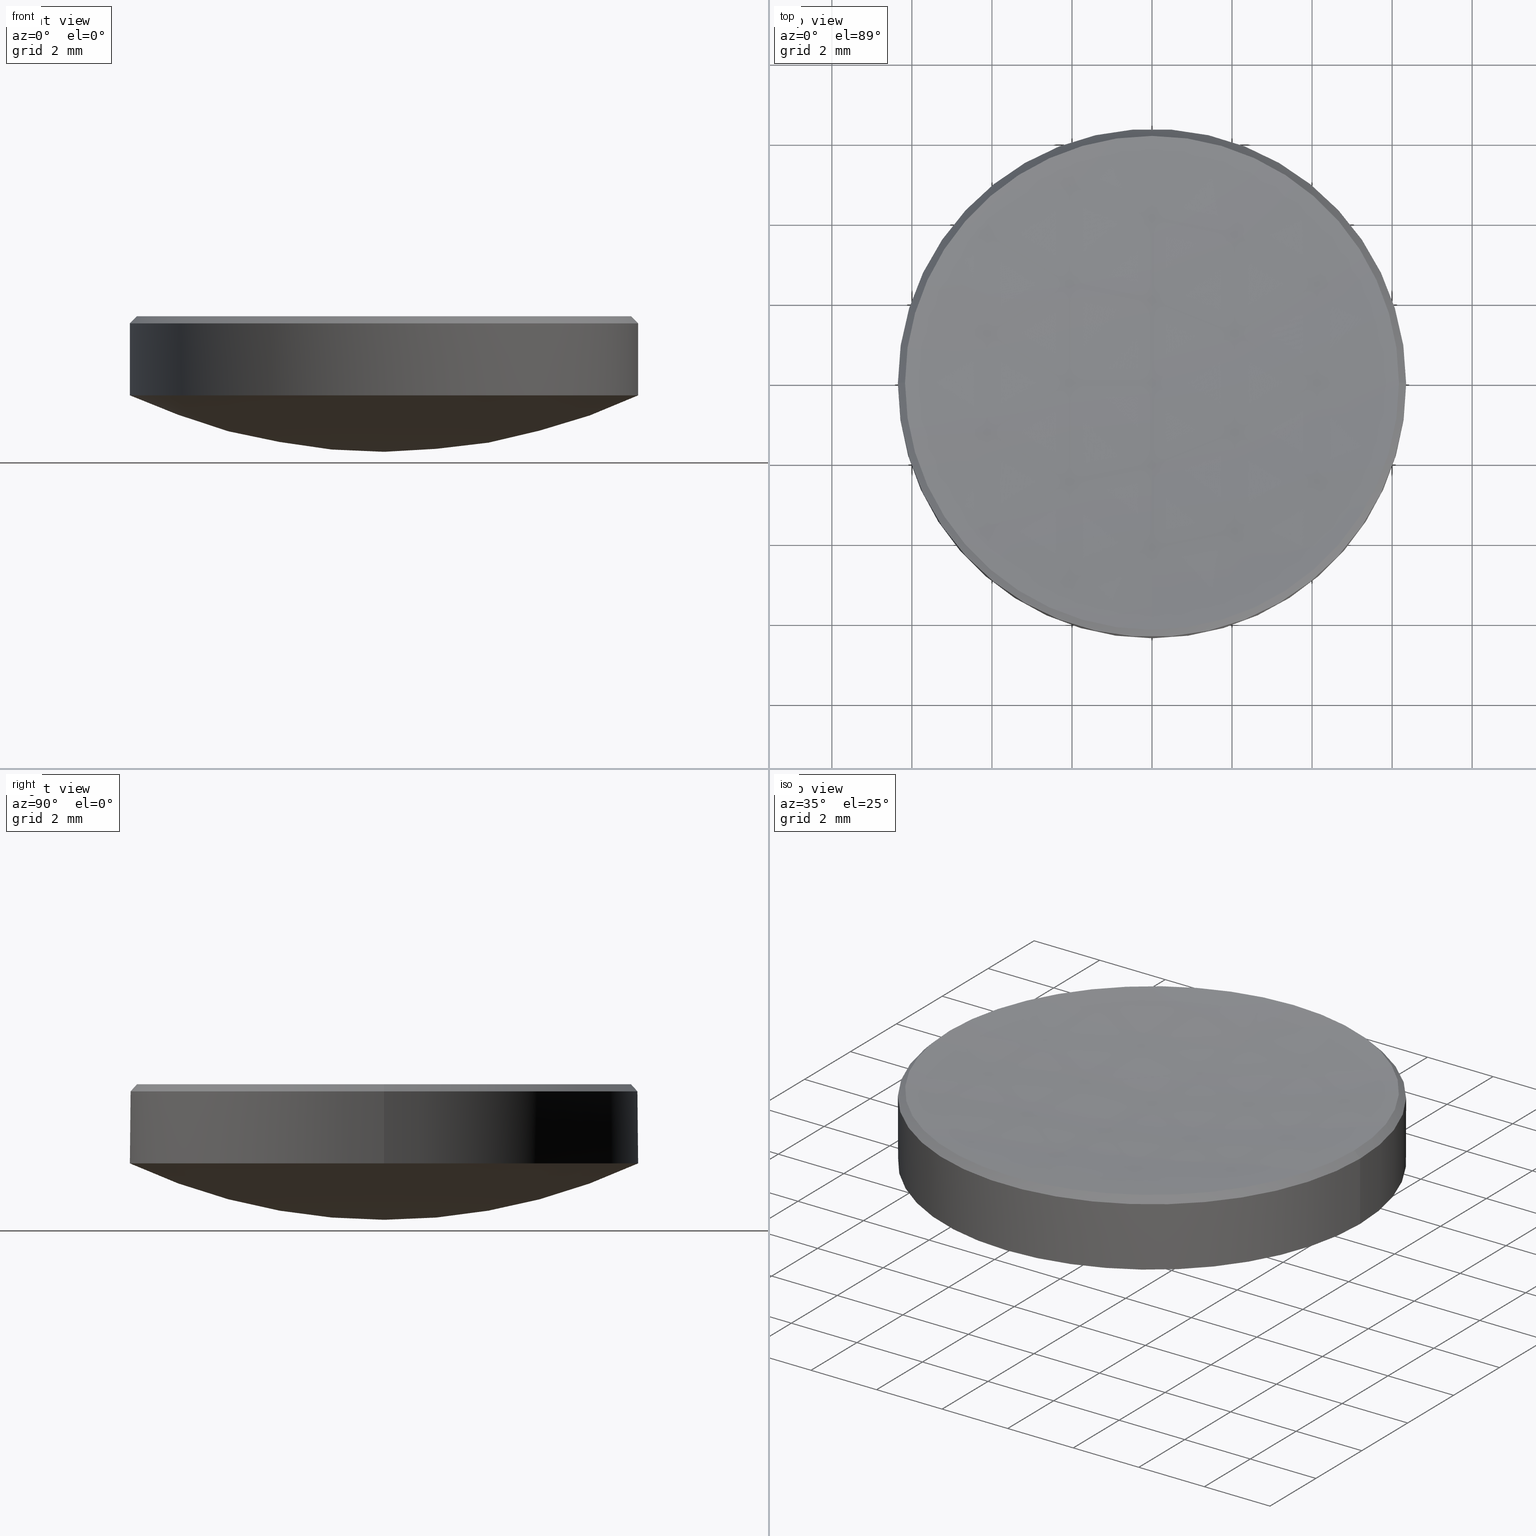
[diagram: canonical four-view strip — front | top / right | iso, engineering-drawing reading convention]
A machine part, canonical four-view strip (front | top / right | iso — engineering-drawing reading convention). The complete STEP part file that produces these views, byte-faithful:
ISO-10303-21;
HEADER;
FILE_DESCRIPTION (( 'STEP AP214' ),
    '1' );
FILE_NAME ('GLM5-012B-050.STEP',
    '2024-08-09T03:04:28',
    ( 'Windows User' ),
    ( 'P R C' ),
    'SwSTEP 2.0',
    'SolidWorks 2022',
    '' );
FILE_SCHEMA (( 'AUTOMOTIVE_DESIGN' ));
ENDSEC;

DATA;
#1 = ORIENTED_EDGE ( 'NONE', *, *, #2, .T. ) ;
#2 = EDGE_CURVE ( 'NONE', #90, #249, #226, .T. ) ;
#3 = STYLED_ITEM ( 'NONE', ( #255 ), #69 ) ;
#4 = CARTESIAN_POINT ( 'NONE',  ( -6.349999999999999645, 0.000000000000000000, 5.800000000000006928 ) ) ;
#5 = DIRECTION ( 'NONE',  ( 1.000000000000000000, 0.000000000000000000, 0.000000000000000000 ) ) ;
#6 = ORIENTED_EDGE ( 'NONE', *, *, #22, .F. ) ;
#7 = AXIS2_PLACEMENT_3D ( 'NONE', #29, #116, #207 ) ;
#8 = CARTESIAN_POINT ( 'NONE',  ( -6.349999999999999645, 0.000000000000000000, 10.00000000000000000 ) ) ;
#9 = EDGE_LOOP ( 'NONE', ( #250, #227, #269, #50 ) ) ;
#10 = VERTEX_POINT ( 'NONE', #230 ) ;
#11 = AXIS2_PLACEMENT_3D ( 'NONE', #81, #256, #191 ) ;
#12 = ORIENTED_EDGE ( 'NONE', *, *, #22, .T. ) ;
#13 = CONICAL_SURFACE ( 'NONE', #178, 6.171335389634268864, 0.7853981633974822518 ) ;
#14 = AXIS2_PLACEMENT_3D ( 'NONE', #156, #234, #276 ) ;
#15 = CARTESIAN_POINT ( 'NONE',  ( -6.171335389634259094, 0.000000000000000000, 5.978664610365738596 ) ) ;
#16 = CARTESIAN_POINT ( 'NONE',  ( -7.776507174585693149E-16, -6.350000000000001421, 3.999999999999999112 ) ) ;
#17 = DIRECTION ( 'NONE',  ( -0.000000000000000000, -0.000000000000000000, -1.000000000000000000 ) ) ;
#18 = DIRECTION ( 'NONE',  ( -0.000000000000000000, -0.000000000000000000, -1.000000000000000000 ) ) ;
#19 = CARTESIAN_POINT ( 'NONE',  ( 0.000000000000000000, 0.000000000000000000, 17.58961000176237732 ) ) ;
#20 = DIRECTION ( 'NONE',  ( -1.000000000000000000, 0.000000000000000000, 0.000000000000000000 ) ) ;
#21 = DIRECTION ( 'NONE',  ( -1.224646799147353207E-16, -1.000000000000000000, 0.000000000000000000 ) ) ;
#22 = EDGE_CURVE ( 'NONE', #54, #209, #240, .T. ) ;
#23 = AXIS2_PLACEMENT_3D ( 'NONE', #41, #126, #253 ) ;
#24 = CIRCLE ( 'NONE', #35, 15.00000000000000355 ) ;
#25 =( GEOMETRIC_REPRESENTATION_CONTEXT ( 3 ) GLOBAL_UNCERTAINTY_ASSIGNED_CONTEXT ( ( #88 ) ) GLOBAL_UNIT_ASSIGNED_CONTEXT ( ( #278, #38, #60 ) ) REPRESENTATION_CONTEXT ( 'NONE', 'WORKASPACE' ) );
#26 = PRODUCT_RELATED_PRODUCT_CATEGORY ( 'part', '', ( #179 ) ) ;
#27 = ORIENTED_EDGE ( 'NONE', *, *, #71, .T. ) ;
#28 = ORIENTED_EDGE ( 'NONE', *, *, #46, .F. ) ;
#29 = CARTESIAN_POINT ( 'NONE',  ( 0.000000000000000000, 0.000000000000000000, 10.00000000000000000 ) ) ;
#30 = ORIENTED_EDGE ( 'NONE', *, *, #185, .F. ) ;
#31 = ORIENTED_EDGE ( 'NONE', *, *, #232, .F. ) ;
#32 = DIRECTION ( 'NONE',  ( 1.000000000000000000, 0.000000000000000000, 0.000000000000000000 ) ) ;
#33 = VERTEX_POINT ( 'NONE', #122 ) ;
#34 = PRESENTATION_LAYER_ASSIGNMENT (  '', '', ( #3 ) ) ;
#35 = AXIS2_PLACEMENT_3D ( 'NONE', #19, #195, #217 ) ;
#36 = ORIENTED_EDGE ( 'NONE', *, *, #67, .F. ) ;
#37 = VECTOR ( 'NONE', #130, 999.9999999999998863 ) ;
#38 =( NAMED_UNIT ( * ) PLANE_ANGLE_UNIT ( ) SI_UNIT ( $, .RADIAN. ) );
#39 = DIRECTION ( 'NONE',  ( -0.000000000000000000, -0.000000000000000000, 1.000000000000000000 ) ) ;
#40 = CARTESIAN_POINT ( 'NONE',  ( 0.000000000000000000, 0.000000000000000000, 17.58961000176237732 ) ) ;
#41 = CARTESIAN_POINT ( 'NONE',  ( 0.000000000000000000, 0.000000000000000000, 17.58961000176237732 ) ) ;
#42 = PRODUCT_DEFINITION_CONTEXT ( 'detailed design', #267, 'design' ) ;
#43 = CARTESIAN_POINT ( 'NONE',  ( 0.000000000000000000, 0.000000000000000000, 5.978664610365738596 ) ) ;
#44 =( LENGTH_UNIT ( ) NAMED_UNIT ( * ) SI_UNIT ( .MILLI., .METRE. ) );
#45 = DIRECTION ( 'NONE',  ( 0.000000000000000000, 1.000000000000000000, 0.000000000000000000 ) ) ;
#46 = EDGE_CURVE ( 'NONE', #54, #33, #98, .T. ) ;
#47 = VECTOR ( 'NONE', #17, 1000.000000000000000 ) ;
#48 = PRESENTATION_LAYER_ASSIGNMENT (  '', '', ( #86 ) ) ;
#49 = CIRCLE ( 'NONE', #215, 52.79999999999999005 ) ;
#50 = ORIENTED_EDGE ( 'NONE', *, *, #110, .F. ) ;
#51 = EDGE_CURVE ( 'NONE', #209, #243, #196, .T. ) ;
#52 = ORIENTED_EDGE ( 'NONE', *, *, #213, .T. ) ;
#53 = ORIENTED_EDGE ( 'NONE', *, *, #199, .T. ) ;
#54 = VERTEX_POINT ( 'NONE', #63 ) ;
#55 = AXIS2_PLACEMENT_3D ( 'NONE', #123, #214, #5 ) ;
#56 = PRODUCT_DEFINITION ( 'δ֪', '', #274, #42 ) ;
#57 = CARTESIAN_POINT ( 'NONE',  ( 0.000000000000000000, 0.000000000000000000, 5.978664610365724386 ) ) ;
#58 = AXIS2_PLACEMENT_3D ( 'NONE', #142, #117, #32 ) ;
#59 = SPHERICAL_SURFACE ( 'NONE', #271, 15.00000000000000355 ) ;
#60 =( NAMED_UNIT ( * ) SI_UNIT ( $, .STERADIAN. ) SOLID_ANGLE_UNIT ( ) );
#61 = PRESENTATION_STYLE_ASSIGNMENT (( #198 ) ) ;
#62 = FACE_OUTER_BOUND ( 'NONE', #168, .T. ) ;
#63 = CARTESIAN_POINT ( 'NONE',  ( 6.171335389634259094, 7.667106652983034787E-16, 5.978664610365738596 ) ) ;
#64 =( NAMED_UNIT ( * ) PLANE_ANGLE_UNIT ( ) SI_UNIT ( $, .RADIAN. ) );
#65 = CARTESIAN_POINT ( 'NONE',  ( 0.000000000000000000, 3.233067549749012013E-15, 5.616767355494177494 ) ) ;
#66 = CYLINDRICAL_SURFACE ( 'NONE', #135, 6.349999999999999645 ) ;
#67 = EDGE_CURVE ( 'NONE', #33, #245, #103, .T. ) ;
#68 = DIRECTION ( 'NONE',  ( 1.000000000000000000, 0.000000000000000000, 0.000000000000000000 ) ) ;
#69 = MANIFOLD_SOLID_BREP ( '����1', #144 ) ;
#70 = DIRECTION ( 'NONE',  ( 0.000000000000000000, 0.000000000000000000, -1.000000000000000000 ) ) ;
#71 = EDGE_CURVE ( 'NONE', #10, #54, #189, .T. ) ;
#72 = AXIS2_PLACEMENT_3D ( 'NONE', #208, #171, #248 ) ;
#73 = ORIENTED_EDGE ( 'NONE', *, *, #114, .F. ) ;
#74 = CYLINDRICAL_SURFACE ( 'NONE', #7, 6.349999999999999645 ) ;
#75 = EDGE_LOOP ( 'NONE', ( #164, #96, #206, #77, #146 ) ) ;
#76 = DIRECTION ( 'NONE',  ( 1.000000000000000000, 0.000000000000000000, 0.000000000000000000 ) ) ;
#77 = ORIENTED_EDGE ( 'NONE', *, *, #110, .T. ) ;
#78 = AXIS2_PLACEMENT_3D ( 'NONE', #258, #194, #68 ) ;
#79 = EDGE_LOOP ( 'NONE', ( #30, #166, #162, #97 ) ) ;
#80 = DIRECTION ( 'NONE',  ( -1.000000000000000000, 0.000000000000000000, 0.000000000000000000 ) ) ;
#81 = CARTESIAN_POINT ( 'NONE',  ( 0.000000000000000000, 0.000000000000000000, 58.41676735549417288 ) ) ;
#82 = SURFACE_STYLE_USAGE ( .BOTH. , #233 ) ;
#83 =( NAMED_UNIT ( * ) SI_UNIT ( $, .STERADIAN. ) SOLID_ANGLE_UNIT ( ) );
#84 = DIRECTION ( 'NONE',  ( 0.000000000000000000, 1.000000000000000000, 0.000000000000000000 ) ) ;
#85 = SURFACE_STYLE_FILL_AREA ( #107 ) ;
#86 = STYLED_ITEM ( 'NONE', ( #61 ), #134 ) ;
#87 = CIRCLE ( 'NONE', #14, 6.349999999999998757 ) ;
#88 = UNCERTAINTY_MEASURE_WITH_UNIT (LENGTH_MEASURE( 1.000000000000000082E-05 ), #278, 'distance_accuracy_value', 'NONE');
#89 = ADVANCED_FACE ( 'NONE', ( #115 ), #13, .T. ) ;
#90 = VERTEX_POINT ( 'NONE', #4 ) ;
#91 = VECTOR ( 'NONE', #143, 1000.000000000000000 ) ;
#92 = ORIENTED_EDGE ( 'NONE', *, *, #199, .F. ) ;
#93 = FACE_OUTER_BOUND ( 'NONE', #75, .T. ) ;
#94 = ORIENTED_EDGE ( 'NONE', *, *, #263, .F. ) ;
#95 = AXIS2_PLACEMENT_3D ( 'NONE', #270, #205, #139 ) ;
#96 = ORIENTED_EDGE ( 'NONE', *, *, #67, .T. ) ;
#97 = ORIENTED_EDGE ( 'NONE', *, *, #242, .T. ) ;
#98 = LINE ( 'NONE', #210, #160 ) ;
#99 = EDGE_CURVE ( 'NONE', #90, #33, #136, .T. ) ;
#100 = CARTESIAN_POINT ( 'NONE',  ( 0.000000000000000000, 0.000000000000000000, 5.978664610365738596 ) ) ;
#101 = ADVANCED_FACE ( 'NONE', ( #93 ), #74, .T. ) ;
#102 = CARTESIAN_POINT ( 'NONE',  ( 6.349999999999998757, 7.776507174585691177E-16, 4.000000000000000000 ) ) ;
#103 = LINE ( 'NONE', #147, #47 ) ;
#104 = UNCERTAINTY_MEASURE_WITH_UNIT (LENGTH_MEASURE( 1.000000000000000082E-05 ), #44, 'distance_accuracy_value', 'NONE');
#105 = CARTESIAN_POINT ( 'NONE',  ( 0.000000000000000000, 6.350000000000001421, 3.999999999999999112 ) ) ;
#106 = DIRECTION ( 'NONE',  ( 1.000000000000000000, 0.000000000000000000, 0.000000000000000000 ) ) ;
#107 = FILL_AREA_STYLE ('',( #109 ) ) ;
#108 = CARTESIAN_POINT ( 'NONE',  ( 0.000000000000000000, 0.000000000000000000, 4.000000000000000000 ) ) ;
#109 = FILL_AREA_STYLE_COLOUR ( '', #113 ) ;
#110 = EDGE_CURVE ( 'NONE', #204, #249, #231, .T. ) ;
#111 = DIRECTION ( 'NONE',  ( 1.000000000000000000, 0.000000000000000000, 0.000000000000000000 ) ) ;
#112 = AXIS2_PLACEMENT_3D ( 'NONE', #260, #20, #236 ) ;
#113 = COLOUR_RGB ( '',1.000000000000000000, 1.000000000000000000, 1.000000000000000000 ) ;
#114 = EDGE_CURVE ( 'NONE', #33, #90, #254, .T. ) ;
#115 = FACE_OUTER_BOUND ( 'NONE', #184, .T. ) ;
#116 = DIRECTION ( 'NONE',  ( -0.000000000000000000, -0.000000000000000000, -1.000000000000000000 ) ) ;
#117 = DIRECTION ( 'NONE',  ( -0.000000000000000000, -0.000000000000000000, 1.000000000000000000 ) ) ;
#118 = VERTEX_POINT ( 'NONE', #167 ) ;
#119 = DIRECTION ( 'NONE',  ( 1.000000000000000000, 0.000000000000000000, 0.000000000000000000 ) ) ;
#120 = ORIENTED_EDGE ( 'NONE', *, *, #51, .F. ) ;
#121 = AXIS2_PLACEMENT_3D ( 'NONE', #100, #169, #119 ) ;
#122 = CARTESIAN_POINT ( 'NONE',  ( 6.349999999999999645, 7.776507174585692163E-16, 5.800000000000006928 ) ) ;
#123 = CARTESIAN_POINT ( 'NONE',  ( 0.000000000000000000, 0.000000000000000000, 5.978664610365738596 ) ) ;
#124 = ADVANCED_FACE ( 'NONE', ( #141 ), #177, .F. ) ;
#125 = CIRCLE ( 'NONE', #244, 6.349999999999998757 ) ;
#126 = DIRECTION ( 'NONE',  ( 1.000000000000000000, -0.000000000000000000, 0.000000000000000000 ) ) ;
#127 = CARTESIAN_POINT ( 'NONE',  ( 0.000000000000000000, 0.000000000000000000, 5.978664610365738596 ) ) ;
#128 = DIRECTION ( 'NONE',  ( -0.000000000000000000, -0.000000000000000000, 1.000000000000000000 ) ) ;
#129 = CARTESIAN_POINT ( 'NONE',  ( 0.000000000000000000, 6.171335389634308832, 5.978664610365742149 ) ) ;
#130 = DIRECTION ( 'NONE',  ( -0.7071067811865716646, 0.000000000000000000, -0.7071067811865234809 ) ) ;
#131 = APPLICATION_PROTOCOL_DEFINITION ( 'draft international standard', 'automotive_design', 1998, #145 ) ;
#132 = DIRECTION ( 'NONE',  ( 1.000000000000000000, 0.000000000000000000, 0.000000000000000000 ) ) ;
#133 = MECHANICAL_DESIGN_GEOMETRIC_PRESENTATION_REPRESENTATION (  '', ( #3 ), #25 ) ;
#134 = ADVANCED_BREP_SHAPE_REPRESENTATION ( 'GLM5-012B-050', ( #69, #78 ), #175 ) ;
#135 = AXIS2_PLACEMENT_3D ( 'NONE', #158, #18, #172 ) ;
#136 = CIRCLE ( 'NONE', #95, 6.349999999999999645 ) ;
#137 = DIRECTION ( 'NONE',  ( -0.000000000000000000, -0.000000000000000000, 1.000000000000000000 ) ) ;
#138 = ORIENTED_EDGE ( 'NONE', *, *, #182, .T. ) ;
#139 = DIRECTION ( 'NONE',  ( 1.000000000000000000, 0.000000000000000000, 0.000000000000000000 ) ) ;
#140 = ORIENTED_EDGE ( 'NONE', *, *, #46, .T. ) ;
#141 = FACE_OUTER_BOUND ( 'NONE', #79, .T. ) ;
#142 = CARTESIAN_POINT ( 'NONE',  ( 0.000000000000000000, 0.000000000000000000, 4.000000000000000000 ) ) ;
#143 = DIRECTION ( 'NONE',  ( -0.000000000000000000, -0.000000000000000000, -1.000000000000000000 ) ) ;
#144 = CLOSED_SHELL ( 'NONE', ( #252, #275, #159, #101, #161, #181, #124, #89 ) ) ;
#145 = APPLICATION_CONTEXT ( 'automotive_design' ) ;
#146 = ORIENTED_EDGE ( 'NONE', *, *, #2, .F. ) ;
#147 = CARTESIAN_POINT ( 'NONE',  ( 6.349999999999999645, 7.776507174585692163E-16, 10.00000000000000000 ) ) ;
#148 = CIRCLE ( 'NONE', #23, 15.00000000000000355 ) ;
#149 = CARTESIAN_POINT ( 'NONE',  ( -6.171335389634268864, 0.000000000000000000, 5.978664610365724386 ) ) ;
#150 = SURFACE_STYLE_FILL_AREA ( #153 ) ;
#151 = PRODUCT_CONTEXT ( 'NONE', #145, 'mechanical' ) ;
#152 = DIRECTION ( 'NONE',  ( 1.000000000000000000, 0.000000000000000000, 0.000000000000000000 ) ) ;
#153 = FILL_AREA_STYLE ('',( #192 ) ) ;
#154 = AXIS2_PLACEMENT_3D ( 'NONE', #43, #128, #132 ) ;
#155 = SHAPE_DEFINITION_REPRESENTATION ( #200, #134 ) ;
#156 = CARTESIAN_POINT ( 'NONE',  ( 0.000000000000000000, 0.000000000000000000, 4.000000000000000000 ) ) ;
#157 = SURFACE_SIDE_STYLE ('',( #85 ) ) ;
#158 = CARTESIAN_POINT ( 'NONE',  ( 0.000000000000000000, 0.000000000000000000, 10.00000000000000000 ) ) ;
#159 = ADVANCED_FACE ( 'NONE', ( #257 ), #59, .T. ) ;
#160 = VECTOR ( 'NONE', #187, 999.9999999999998863 ) ;
#161 = ADVANCED_FACE ( 'NONE', ( #193 ), #66, .T. ) ;
#162 = ORIENTED_EDGE ( 'NONE', *, *, #51, .T. ) ;
#163 = AXIS2_PLACEMENT_3D ( 'NONE', #220, #106, #216 ) ;
#164 = ORIENTED_EDGE ( 'NONE', *, *, #99, .T. ) ;
#165 = CARTESIAN_POINT ( 'NONE',  ( 0.000000000000000000, 0.000000000000000000, 5.978664610365724386 ) ) ;
#166 = ORIENTED_EDGE ( 'NONE', *, *, #223, .T. ) ;
#167 = CARTESIAN_POINT ( 'NONE',  ( 0.000000000000000000, 9.184850993605149917E-16, 2.589610001762374214 ) ) ;
#168 = EDGE_LOOP ( 'NONE', ( #94, #138, #170, #31 ) ) ;
#169 = DIRECTION ( 'NONE',  ( -0.000000000000000000, -0.000000000000000000, 1.000000000000000000 ) ) ;
#170 = ORIENTED_EDGE ( 'NONE', *, *, #203, .F. ) ;
#171 = DIRECTION ( 'NONE',  ( 0.000000000000000000, 0.000000000000000000, -1.000000000000000000 ) ) ;
#172 = DIRECTION ( 'NONE',  ( -1.000000000000000000, 0.000000000000000000, 0.000000000000000000 ) ) ;
#173 = LINE ( 'NONE', #149, #37 ) ;
#174 = SPHERICAL_SURFACE ( 'NONE', #180, 15.00000000000000355 ) ;
#175 =( GEOMETRIC_REPRESENTATION_CONTEXT ( 3 ) GLOBAL_UNCERTAINTY_ASSIGNED_CONTEXT ( ( #104 ) ) GLOBAL_UNIT_ASSIGNED_CONTEXT ( ( #44, #64, #265 ) ) REPRESENTATION_CONTEXT ( 'NONE', 'WORKASPACE' ) );
#176 = DIRECTION ( 'NONE',  ( -1.000000000000000000, 0.000000000000000000, 0.000000000000000000 ) ) ;
#177 = SPHERICAL_SURFACE ( 'NONE', #112, 52.79999999999999005 ) ;
#178 = AXIS2_PLACEMENT_3D ( 'NONE', #165, #70, #246 ) ;
#179 = PRODUCT ( 'GLM5-012B-050', 'GLM5-012B-050', '', ( #151 ) ) ;
#180 = AXIS2_PLACEMENT_3D ( 'NONE', #279, #80, #84 ) ;
#181 = ADVANCED_FACE ( 'NONE', ( #62 ), #174, .T. ) ;
#182 = EDGE_CURVE ( 'NONE', #118, #204, #148, .T. ) ;
#183 = ORIENTED_EDGE ( 'NONE', *, *, #114, .T. ) ;
#184 = EDGE_LOOP ( 'NONE', ( #28, #211, #268, #53, #73 ) ) ;
#185 = EDGE_CURVE ( 'NONE', #202, #10, #49, .T. ) ;
#186 = AXIS2_PLACEMENT_3D ( 'NONE', #108, #39, #111 ) ;
#187 = DIRECTION ( 'NONE',  ( 0.7071067811865716646, 8.659560562355227448E-17, -0.7071067811865234809 ) ) ;
#188 = UNCERTAINTY_MEASURE_WITH_UNIT (LENGTH_MEASURE( 1.000000000000000082E-05 ), #266, 'distance_accuracy_value', 'NONE');
#189 = CIRCLE ( 'NONE', #264, 6.171335389634259094 ) ;
#190 = CARTESIAN_POINT ( 'NONE',  ( -6.349999999999998757, 0.000000000000000000, 4.000000000000000000 ) ) ;
#191 = DIRECTION ( 'NONE',  ( 0.000000000000000000, 1.000000000000000000, 0.000000000000000000 ) ) ;
#192 = FILL_AREA_STYLE_COLOUR ( '', #221 ) ;
#193 = FACE_OUTER_BOUND ( 'NONE', #225, .T. ) ;
#194 = DIRECTION ( 'NONE',  ( 0.000000000000000000, 0.000000000000000000, 1.000000000000000000 ) ) ;
#195 = DIRECTION ( 'NONE',  ( -1.000000000000000000, 1.224646799147353207E-16, 0.000000000000000000 ) ) ;
#196 = CIRCLE ( 'NONE', #55, 6.171335389634259094 ) ;
#197 =( GEOMETRIC_REPRESENTATION_CONTEXT ( 3 ) GLOBAL_UNCERTAINTY_ASSIGNED_CONTEXT ( ( #188 ) ) GLOBAL_UNIT_ASSIGNED_CONTEXT ( ( #266, #281, #83 ) ) REPRESENTATION_CONTEXT ( 'NONE', 'WORKASPACE' ) );
#198 = SURFACE_STYLE_USAGE ( .BOTH. , #157 ) ;
#199 = EDGE_CURVE ( 'NONE', #243, #90, #173, .T. ) ;
#200 = PRODUCT_DEFINITION_SHAPE ( 'NONE', 'NONE',  #56 ) ;
#201 = CIRCLE ( 'NONE', #186, 6.349999999999998757 ) ;
#202 = VERTEX_POINT ( 'NONE', #65 ) ;
#203 = EDGE_CURVE ( 'NONE', #245, #204, #87, .T. ) ;
#204 = VERTEX_POINT ( 'NONE', #105 ) ;
#205 = DIRECTION ( 'NONE',  ( 0.000000000000000000, 0.000000000000000000, -1.000000000000000000 ) ) ;
#206 = ORIENTED_EDGE ( 'NONE', *, *, #203, .T. ) ;
#207 = DIRECTION ( 'NONE',  ( -1.000000000000000000, 0.000000000000000000, 0.000000000000000000 ) ) ;
#208 = CARTESIAN_POINT ( 'NONE',  ( 0.000000000000000000, 0.000000000000000000, 5.800000000000006928 ) ) ;
#209 = VERTEX_POINT ( 'NONE', #129 ) ;
#210 = CARTESIAN_POINT ( 'NONE',  ( 6.171335389634268864, 7.557706131380392202E-16, 5.978664610365724386 ) ) ;
#211 = ORIENTED_EDGE ( 'NONE', *, *, #71, .F. ) ;
#212 = AXIS2_PLACEMENT_3D ( 'NONE', #57, #218, #176 ) ;
#213 = EDGE_CURVE ( 'NONE', #249, #272, #125, .T. ) ;
#214 = DIRECTION ( 'NONE',  ( -0.000000000000000000, -0.000000000000000000, 1.000000000000000000 ) ) ;
#215 = AXIS2_PLACEMENT_3D ( 'NONE', #262, #259, #21 ) ;
#216 = DIRECTION ( 'NONE',  ( 0.000000000000000000, 0.000000000000000000, -1.000000000000000000 ) ) ;
#217 = DIRECTION ( 'NONE',  ( -1.224646799147352961E-16, -1.000000000000000000, 0.000000000000000000 ) ) ;
#218 = DIRECTION ( 'NONE',  ( 0.000000000000000000, 0.000000000000000000, -1.000000000000000000 ) ) ;
#219 = CARTESIAN_POINT ( 'NONE',  ( 0.000000000000000000, 0.000000000000000000, 4.000000000000000000 ) ) ;
#220 = CARTESIAN_POINT ( 'NONE',  ( 0.000000000000000000, 0.000000000000000000, 58.41676735549417288 ) ) ;
#221 = COLOUR_RGB ( '',1.000000000000000000, 1.000000000000000000, 1.000000000000000000 ) ;
#222 = CONICAL_SURFACE ( 'NONE', #212, 6.171335389634268864, 0.7853981633974822518 ) ;
#223 = EDGE_CURVE ( 'NONE', #202, #209, #282, .T. ) ;
#224 = ORIENTED_EDGE ( 'NONE', *, *, #185, .T. ) ;
#225 = EDGE_LOOP ( 'NONE', ( #36, #183, #1, #52, #247 ) ) ;
#226 = LINE ( 'NONE', #8, #91 ) ;
#227 = ORIENTED_EDGE ( 'NONE', *, *, #263, .T. ) ;
#228 = ORIENTED_EDGE ( 'NONE', *, *, #99, .F. ) ;
#229 = ORIENTED_EDGE ( 'NONE', *, *, #223, .F. ) ;
#230 = CARTESIAN_POINT ( 'NONE',  ( -7.557706131380439534E-16, -6.171335389634308832, 5.978664610365742149 ) ) ;
#231 = CIRCLE ( 'NONE', #58, 6.349999999999998757 ) ;
#232 = EDGE_CURVE ( 'NONE', #272, #245, #201, .T. ) ;
#233 = SURFACE_SIDE_STYLE ('',( #150 ) ) ;
#234 = DIRECTION ( 'NONE',  ( -0.000000000000000000, -0.000000000000000000, 1.000000000000000000 ) ) ;
#235 = APPLICATION_PROTOCOL_DEFINITION ( 'draft international standard', 'automotive_design', 1998, #267 ) ;
#236 = DIRECTION ( 'NONE',  ( 0.000000000000000000, 1.000000000000000000, 0.000000000000000000 ) ) ;
#237 = DIRECTION ( 'NONE',  ( -1.000000000000000000, 0.000000000000000000, 0.000000000000000000 ) ) ;
#238 = DIRECTION ( 'NONE',  ( -0.000000000000000000, -0.000000000000000000, 1.000000000000000000 ) ) ;
#239 = FACE_OUTER_BOUND ( 'NONE', #273, .T. ) ;
#240 = CIRCLE ( 'NONE', #121, 6.171335389634259094 ) ;
#241 = MECHANICAL_DESIGN_GEOMETRIC_PRESENTATION_REPRESENTATION (  '', ( #86 ), #197 ) ;
#242 = EDGE_CURVE ( 'NONE', #243, #10, #261, .T. ) ;
#243 = VERTEX_POINT ( 'NONE', #15 ) ;
#244 = AXIS2_PLACEMENT_3D ( 'NONE', #219, #238, #152 ) ;
#245 = VERTEX_POINT ( 'NONE', #102 ) ;
#246 = DIRECTION ( 'NONE',  ( -1.000000000000000000, 0.000000000000000000, 0.000000000000000000 ) ) ;
#247 = ORIENTED_EDGE ( 'NONE', *, *, #232, .T. ) ;
#248 = DIRECTION ( 'NONE',  ( 1.000000000000000000, 0.000000000000000000, 0.000000000000000000 ) ) ;
#249 = VERTEX_POINT ( 'NONE', #190 ) ;
#250 = ORIENTED_EDGE ( 'NONE', *, *, #182, .F. ) ;
#251 = EDGE_LOOP ( 'NONE', ( #229, #224, #27, #12 ) ) ;
#252 = ADVANCED_FACE ( 'NONE', ( #239 ), #222, .T. ) ;
#253 = DIRECTION ( 'NONE',  ( 0.000000000000000000, 0.000000000000000000, -1.000000000000000000 ) ) ;
#254 = CIRCLE ( 'NONE', #72, 6.349999999999999645 ) ;
#255 = PRESENTATION_STYLE_ASSIGNMENT (( #82 ) ) ;
#256 = DIRECTION ( 'NONE',  ( -1.000000000000000000, 0.000000000000000000, 0.000000000000000000 ) ) ;
#257 = FACE_OUTER_BOUND ( 'NONE', #9, .T. ) ;
#258 = CARTESIAN_POINT ( 'NONE',  ( 0.000000000000000000, 0.000000000000000000, 0.000000000000000000 ) ) ;
#259 = DIRECTION ( 'NONE',  ( -1.000000000000000000, 1.224646799147353207E-16, 0.000000000000000000 ) ) ;
#260 = CARTESIAN_POINT ( 'NONE',  ( 0.000000000000000000, 0.000000000000000000, 58.41676735549417288 ) ) ;
#261 = CIRCLE ( 'NONE', #154, 6.171335389634259094 ) ;
#262 = CARTESIAN_POINT ( 'NONE',  ( 0.000000000000000000, 0.000000000000000000, 58.41676735549417288 ) ) ;
#263 = EDGE_CURVE ( 'NONE', #118, #272, #24, .T. ) ;
#264 = AXIS2_PLACEMENT_3D ( 'NONE', #127, #137, #76 ) ;
#265 =( NAMED_UNIT ( * ) SI_UNIT ( $, .STERADIAN. ) SOLID_ANGLE_UNIT ( ) );
#266 =( LENGTH_UNIT ( ) NAMED_UNIT ( * ) SI_UNIT ( .MILLI., .METRE. ) );
#267 = APPLICATION_CONTEXT ( 'automotive_design' ) ;
#268 = ORIENTED_EDGE ( 'NONE', *, *, #242, .F. ) ;
#269 = ORIENTED_EDGE ( 'NONE', *, *, #213, .F. ) ;
#270 = CARTESIAN_POINT ( 'NONE',  ( 0.000000000000000000, 0.000000000000000000, 5.800000000000006928 ) ) ;
#271 = AXIS2_PLACEMENT_3D ( 'NONE', #40, #237, #45 ) ;
#272 = VERTEX_POINT ( 'NONE', #16 ) ;
#273 = EDGE_LOOP ( 'NONE', ( #6, #140, #228, #92, #120 ) ) ;
#274 = PRODUCT_DEFINITION_FORMATION_WITH_SPECIFIED_SOURCE ( '�κ�', '', #179, .NOT_KNOWN. ) ;
#275 = ADVANCED_FACE ( 'NONE', ( #280 ), #277, .F. ) ;
#276 = DIRECTION ( 'NONE',  ( 1.000000000000000000, 0.000000000000000000, 0.000000000000000000 ) ) ;
#277 = SPHERICAL_SURFACE ( 'NONE', #11, 52.79999999999999005 ) ;
#278 =( LENGTH_UNIT ( ) NAMED_UNIT ( * ) SI_UNIT ( .MILLI., .METRE. ) );
#279 = CARTESIAN_POINT ( 'NONE',  ( 0.000000000000000000, 0.000000000000000000, 17.58961000176237732 ) ) ;
#280 = FACE_OUTER_BOUND ( 'NONE', #251, .T. ) ;
#281 =( NAMED_UNIT ( * ) PLANE_ANGLE_UNIT ( ) SI_UNIT ( $, .RADIAN. ) );
#282 = CIRCLE ( 'NONE', #163, 52.79999999999999005 ) ;
ENDSEC;
END-ISO-10303-21;
